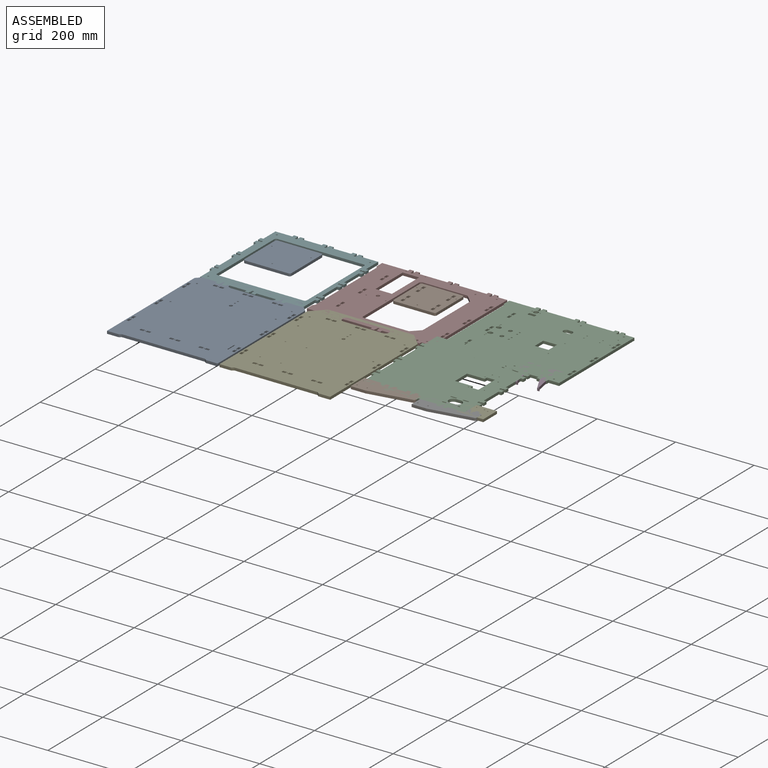
[diagram: assembled view]
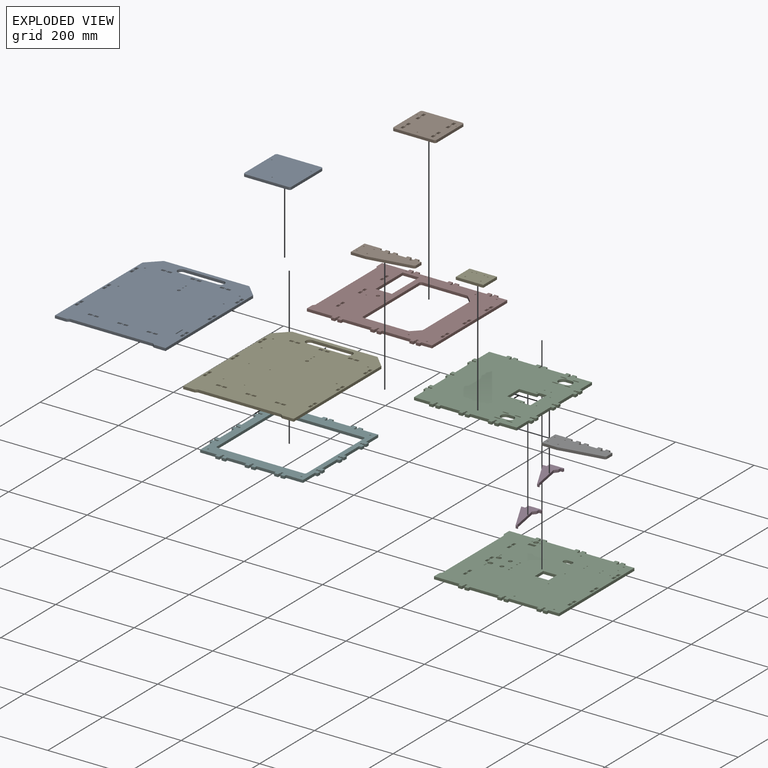
[diagram: exploded view]
GUIDED TOUR — MATED ASSEMBLY (Onshape document 58e44015b4d9da0f6f9fdbf2, AutoMate assembly 58e44015b4d9da0f6f9fdbf2_173f1cdadd715b1f26d6dbd6_f28251149753ce15b3aa4993_default)

This assembly has 13 components, labeled P0..P12 below (a component is one placed occurrence of a part; the same part can appear more than once), held together by 11 mates. A mate is a constraint between two components; its type names the relative motion it leaves free:
  FASTENED — locks the two components together rigidly (no relative motion).
Axis/direction vectors are unit vectors and 'through' points are millimeter coordinates, both in the assembly's world frame.

MATES
  1. FASTENED "Fastened 9": P1 <-> P6, direction (0.000, 0.000, 1.000) through (707.45, -486.00, 0.00) mm
  2. FASTENED "Fastened 6": P5 <-> P8, direction (0.000, 0.000, 1.000) through (-6.55, -230.00, 0.00) mm
  3. FASTENED "Fastened 10": P1 <-> P2, direction (0.000, 0.000, 1.000) through (567.45, -486.00, 0.00) mm
  4. FASTENED "Fastened 7": P8 <-> P4, direction (0.000, 0.000, 1.000) through (275.45, -285.00, 0.00) mm
  5. FASTENED "Fastened 3": P5 <-> P7, direction (0.000, 0.000, 1.000) through (262.00, 0.00, 0.00) mm
  6. FASTENED "Fastened 8": P2 <-> P4, direction (0.000, 0.000, 1.000) through (567.45, -275.00, 0.00) mm
  7. FASTENED "Fastened 4": P7 <-> P10, direction (0.000, 0.000, 1.000) through (591.00, 0.00, 0.00) mm
  8. FASTENED "Fastened 11": P3 <-> P11, direction (0.000, 0.000, 1.000) through (838.00, -224.45, 0.00) mm
  9. FASTENED "Fastened 12": P3 <-> P2, direction (0.000, 0.000, 1.000) through (838.00, -224.45, 0.00) mm
  10. FASTENED "Fastened 13": P12 <-> P2, direction (0.000, 0.000, 1.000) through (818.00, -511.55, 0.00) mm
  11. FASTENED "Fastened 5": P7 <-> P9, direction (0.000, 0.000, 1.000) through (396.00, -35.00, 0.00) mm

ASSEMBLY ORDER
  1. P7 — the base component [order verified]
  2. P4 [order verified]
  3. P5 [order verified]
  4. P8 [order verified]
  5. P1 [order verified]
  6. P2 [order verified]
  7. P6 [order verified]
  8. P3 [order verified]
  9. P11 [order verified]
  10. P10 [order verified]
  11. P0 [order verified]
  12. P9 [order verified]
  13. P12 [order verified]
Order-tag legend:
  [order verified] — this step's position reverses a verified removal order: the component was checked to insert without passing through the ones already placed.

Of the 13 components, 2 carry the full construction recipe — the FeatureScript program that regenerates the part's solid from scratch; the rest are supplied as boundary geometry only.
Because this assembly has more than 12 components, the tour below covers the 12 most significant ones individually (every recipe-attached component first, then the largest by part volume), in assembly order; the remaining 1 are summarized together in a grouped section at the end.
Each toured component is shown spotlighted twice — in the assembled view, then in the exploded view, where a leader line traces a displaced component back to its assembled socket (saturated green if recipe-attached, orange if geometry-only; every other component desaturated gray) — followed by its recipe or geometry summary and the mates that hold it.
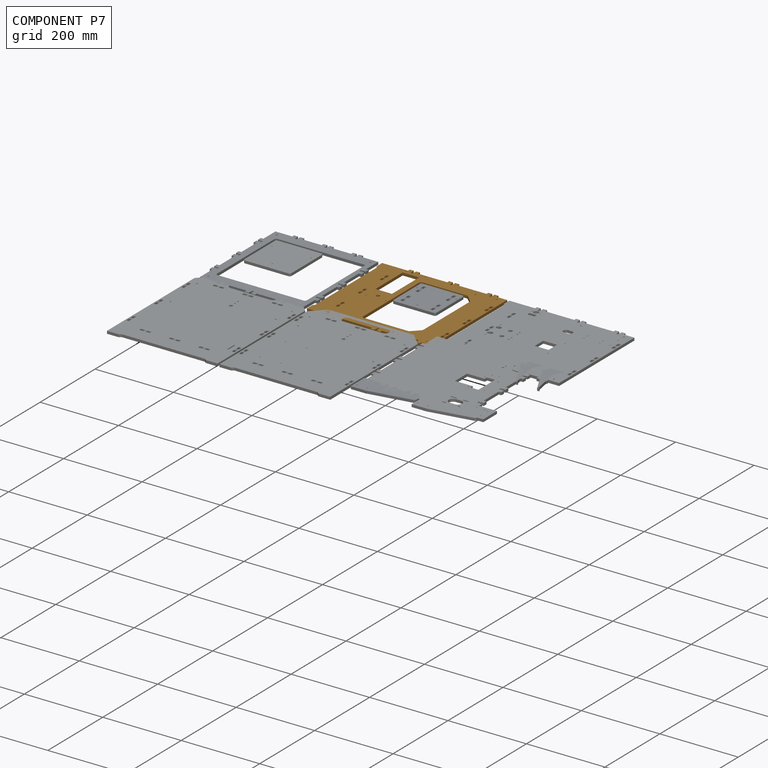
[diagram: component P7 — assembled]
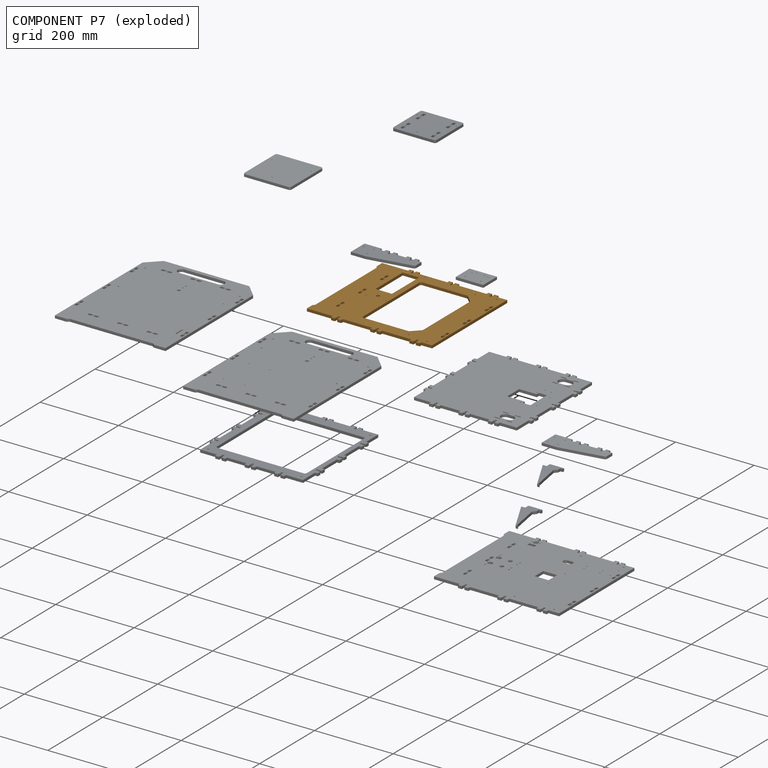
[diagram: component P7 — exploded]
COMPONENT P7 — geometry summary (no construction recipe available for this part):
  bounding box: 319.0 x 287.1 x 6.8 mm
  B-rep topology: 1 solid, 221 faces, 1314 edges
  volume: 355640 mm^3 (57% of its bounding box)
  symmetry: mirror-symmetric across its z mid-plane
Held by: FASTENED mate "Fastened 3" to P5; FASTENED mate "Fastened 4" to P10; FASTENED mate "Fastened 5" to P9.
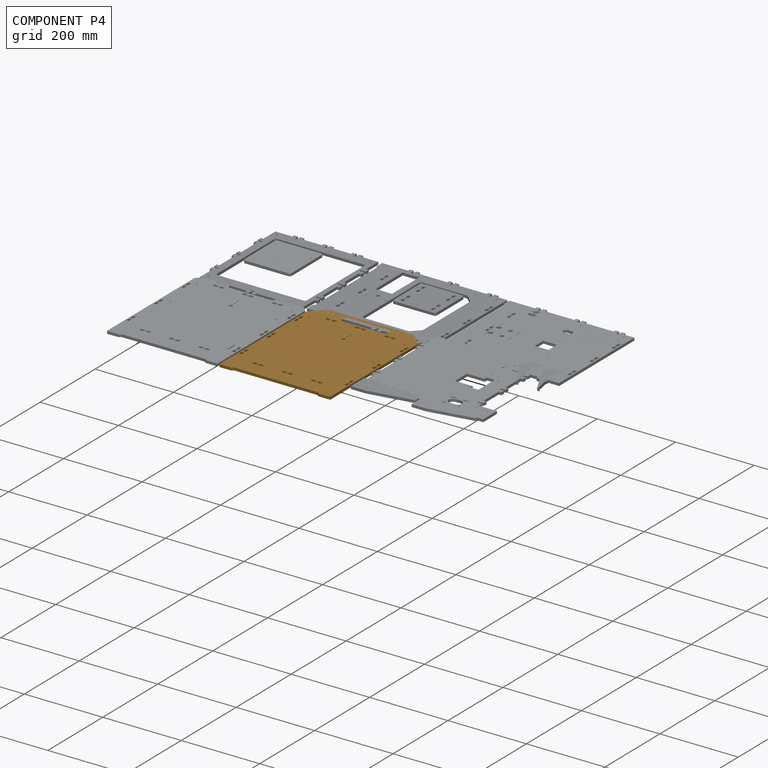
[diagram: component P4 — assembled]
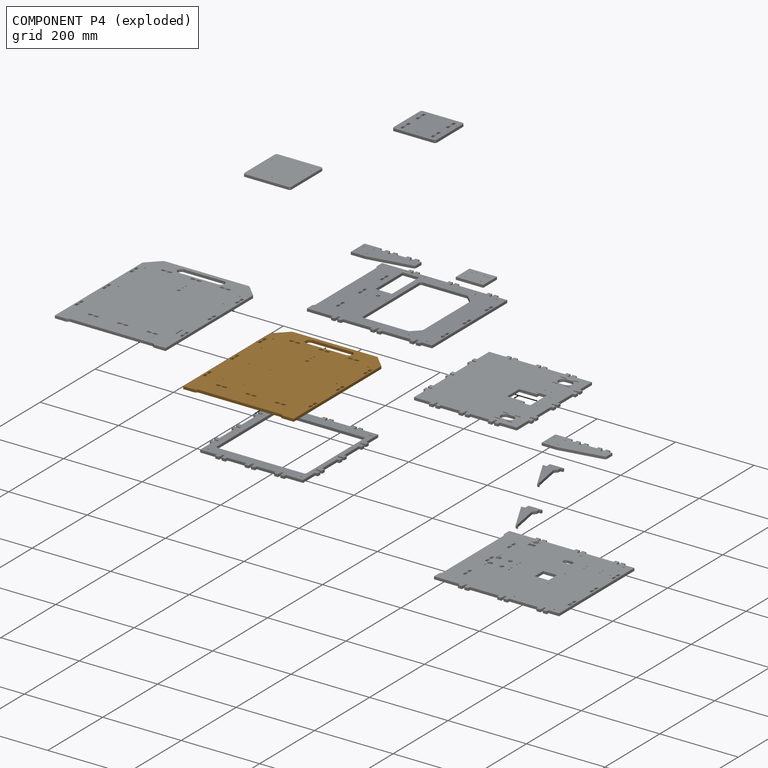
[diagram: component P4 — exploded]
COMPONENT P4 — geometry summary (no construction recipe available for this part):
  bounding box: 351.0 x 282.0 x 6.8 mm
  B-rep topology: 1 solid, 137 faces, 810 edges
  volume: 632048 mm^3 (94% of its bounding box)
  symmetry: 2-fold rotationally symmetric about the y axis; mirror-symmetric across its x mid-plane, z mid-plane
Held by: FASTENED mate "Fastened 7" to P8; FASTENED mate "Fastened 8" to P2.
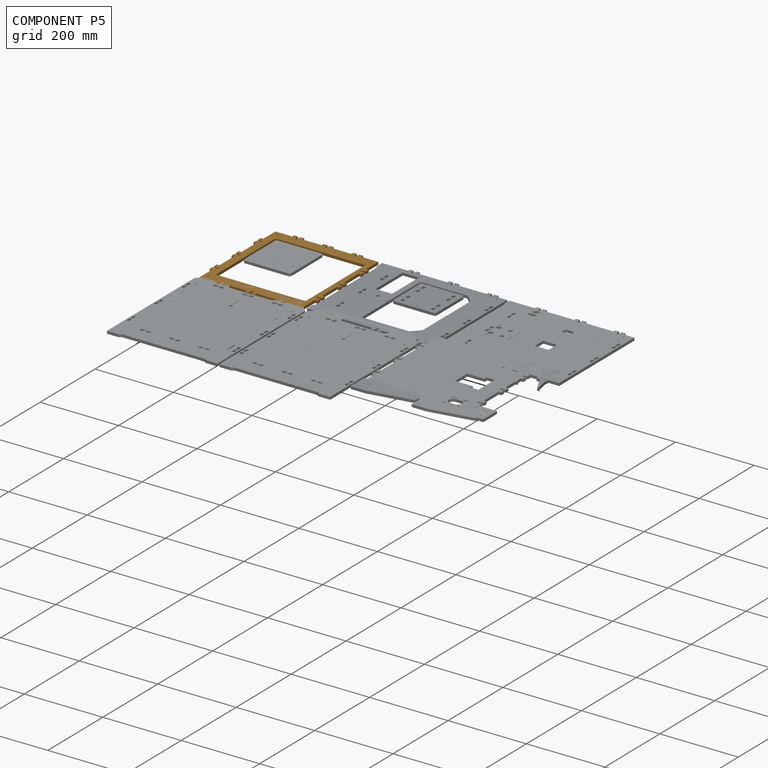
[diagram: component P5 — assembled]
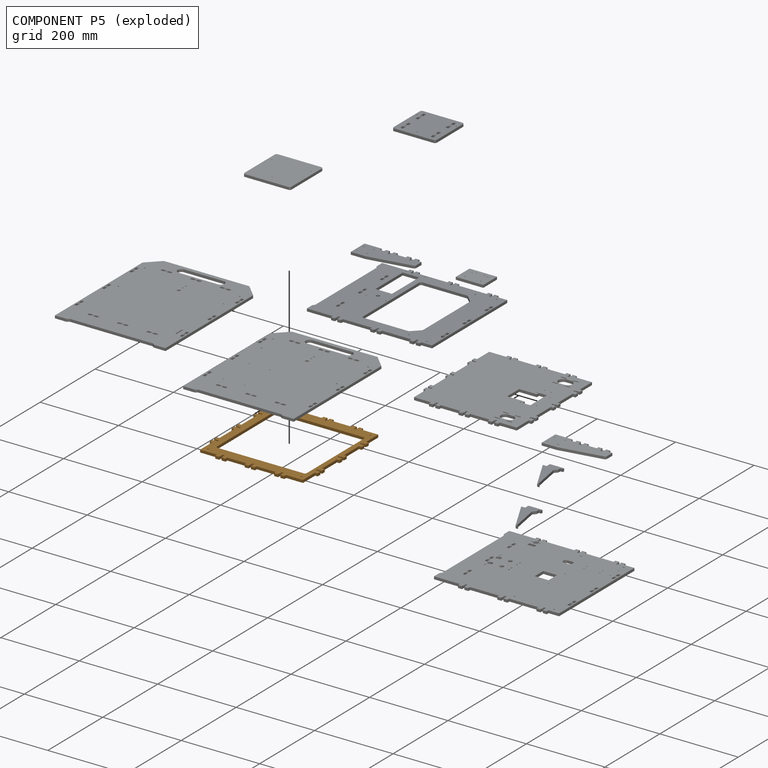
[diagram: component P5 — exploded]
COMPONENT P5 — geometry summary (no construction recipe available for this part):
  bounding box: 287.1 x 275.1 x 6.8 mm
  B-rep topology: 1 solid, 282 faces, 1684 edges
  volume: 157090 mm^3 (29% of its bounding box)
  symmetry: 2-fold rotationally symmetric about the y axis; mirror-symmetric across its x mid-plane, z mid-plane
Held by: FASTENED mate "Fastened 6" to P8; FASTENED mate "Fastened 3" to P7.
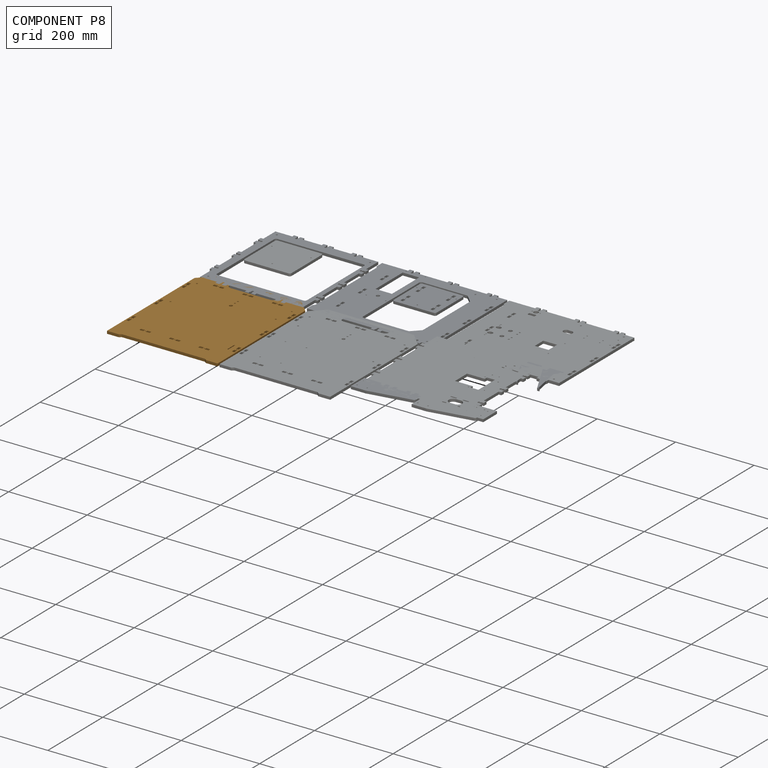
[diagram: component P8 — assembled]
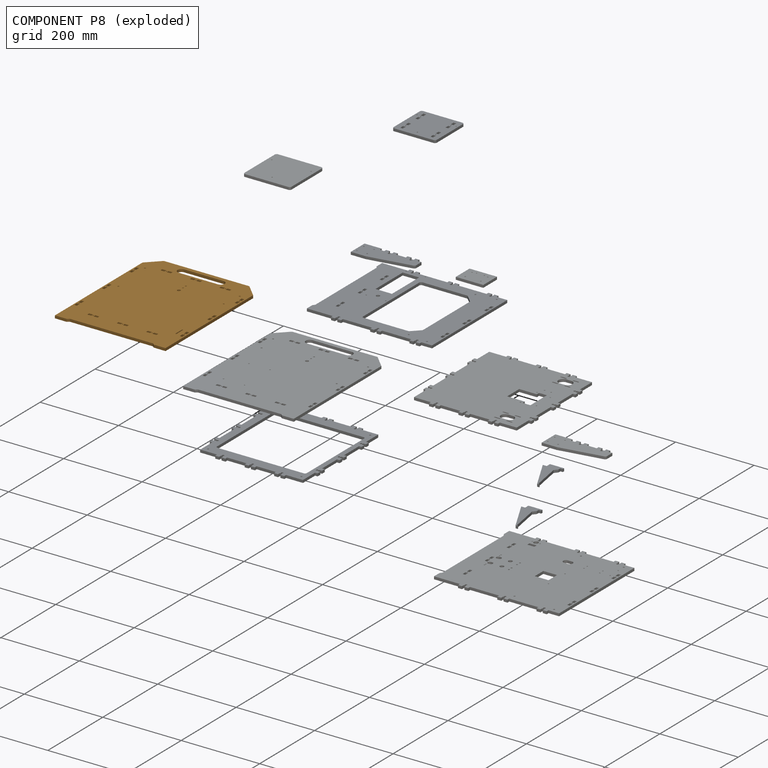
[diagram: component P8 — exploded]
COMPONENT P8 — geometry summary (no construction recipe available for this part):
  bounding box: 351.0 x 282.0 x 6.8 mm
  B-rep topology: 1 solid, 137 faces, 810 edges
  volume: 631798 mm^3 (94% of its bounding box)
  symmetry: 2-fold rotationally symmetric about the y axis; mirror-symmetric across its x mid-plane, z mid-plane
Held by: FASTENED mate "Fastened 6" to P5; FASTENED mate "Fastened 7" to P4.
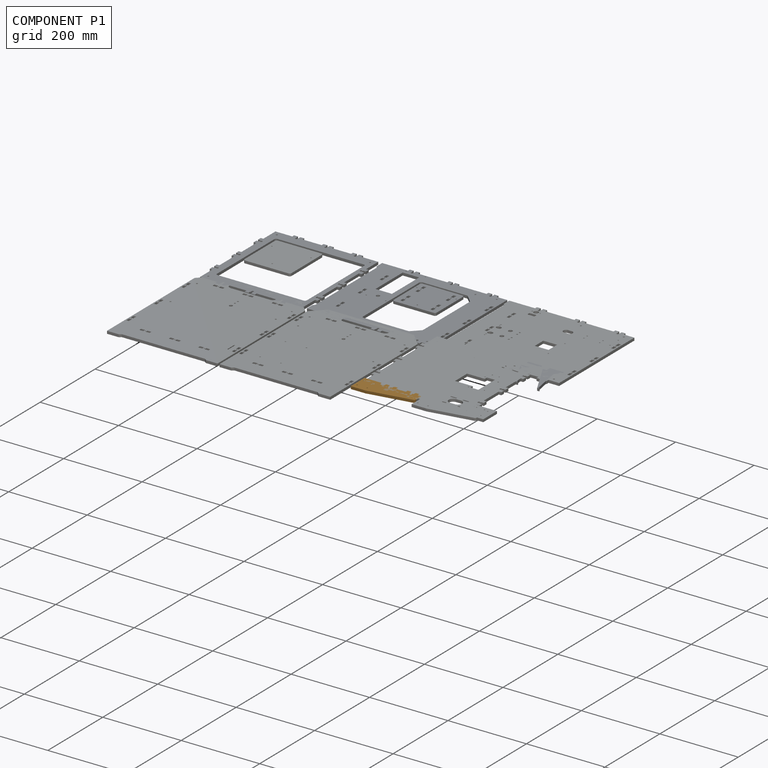
[diagram: component P1 — assembled]
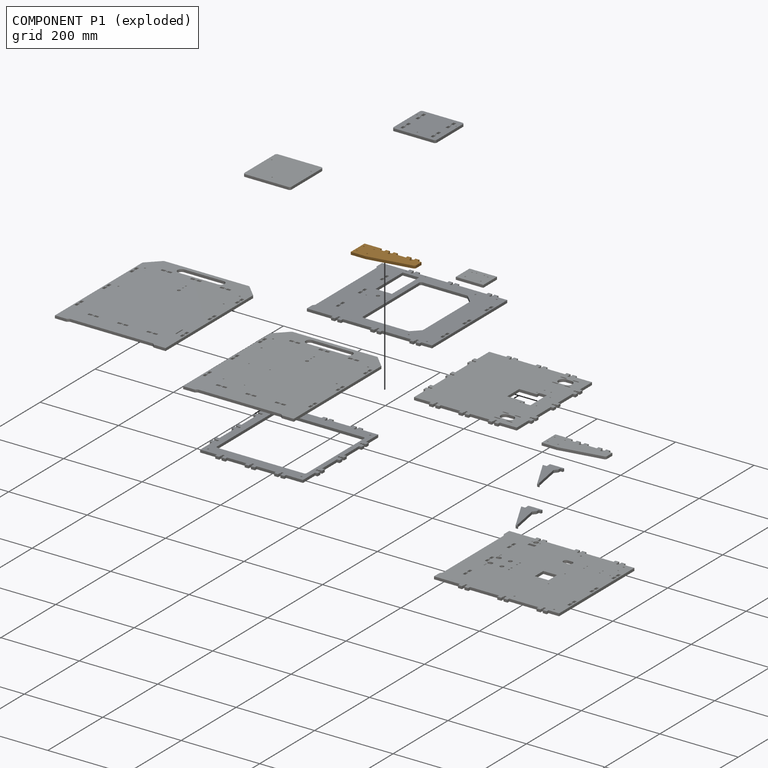
[diagram: component P1 — exploded]
COMPONENT P1 — geometry summary (no construction recipe available for this part):
  bounding box: 150.0 x 50.0 x 6.7 mm
  B-rep topology: 1 solid, 58 faces, 336 edges
  volume: 38903 mm^3 (78% of its bounding box)
  symmetry: mirror-symmetric across its z mid-plane
Held by: FASTENED mate "Fastened 9" to P6; FASTENED mate "Fastened 10" to P2.
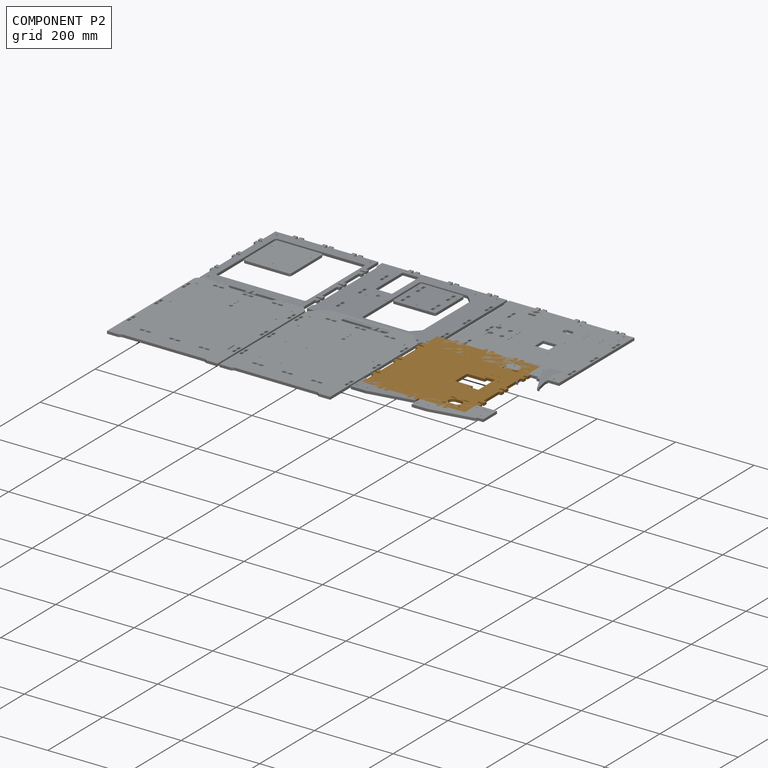
[diagram: component P2 — assembled]
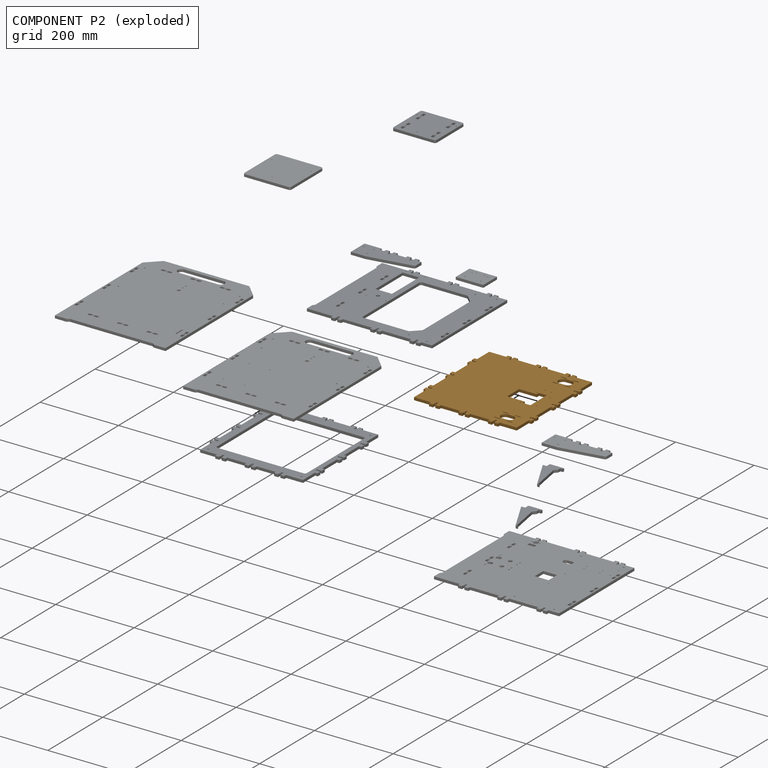
[diagram: component P2 — exploded]
COMPONENT P2 — geometry summary (no construction recipe available for this part):
  bounding box: 287.1 x 275.1 x 6.8 mm
  B-rep topology: 1 solid, 324 faces, 1932 edges
  volume: 462902 mm^3 (86% of its bounding box)
  symmetry: 2-fold rotationally symmetric about the y axis; mirror-symmetric across its x mid-plane, z mid-plane
Held by: FASTENED mate "Fastened 10" to P1; FASTENED mate "Fastened 8" to P4; FASTENED mate "Fastened 12" to P3; FASTENED mate "Fastened 13" to P12.
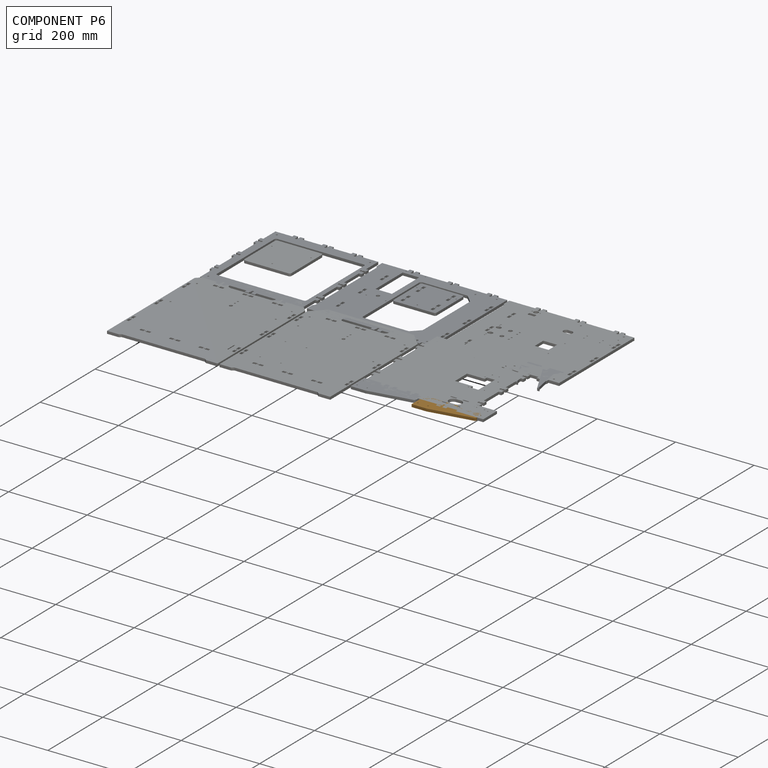
[diagram: component P6 — assembled]
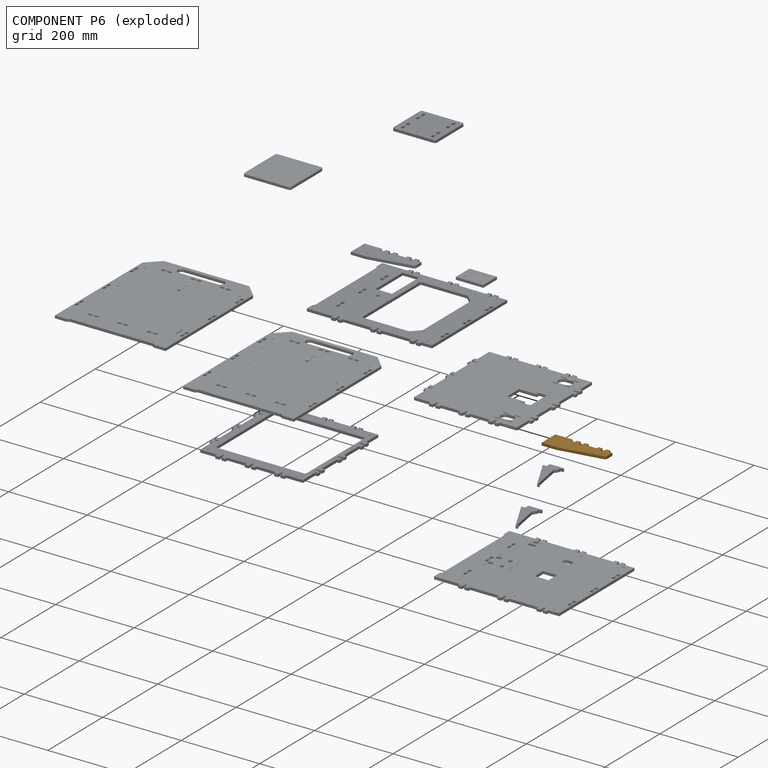
[diagram: component P6 — exploded]
COMPONENT P6 — geometry summary (no construction recipe available for this part):
  bounding box: 150.0 x 50.0 x 6.7 mm
  B-rep topology: 1 solid, 58 faces, 336 edges
  volume: 38903 mm^3 (78% of its bounding box)
  symmetry: mirror-symmetric across its z mid-plane
Held by: FASTENED mate "Fastened 9" to P1.
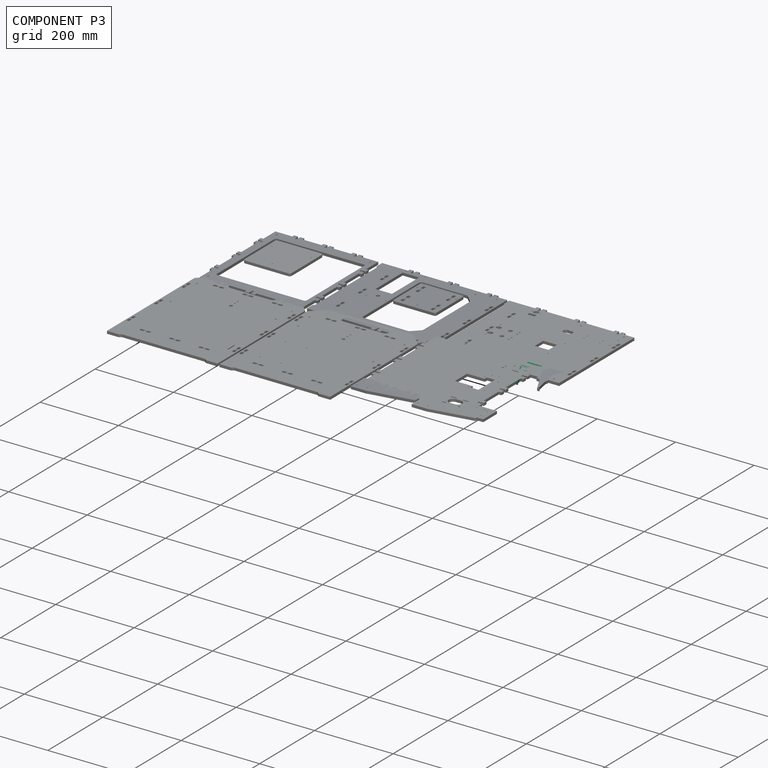
[diagram: component P3 — assembled]
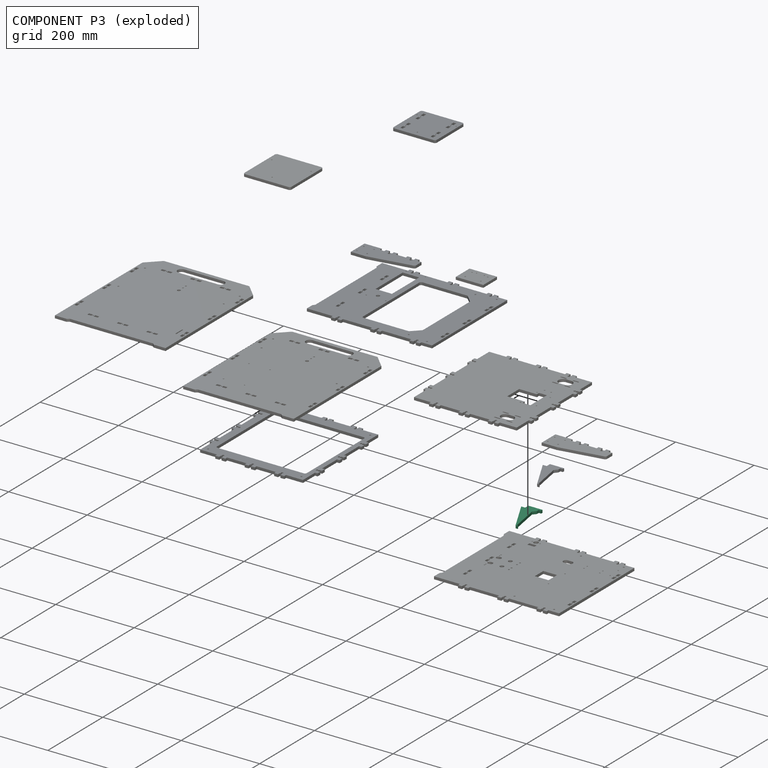
[diagram: component P3 — exploded]
COMPONENT P3 — recipe-attached (CADFS 00680010, mesh-verified: the recipe's output STEP matches this component's geometry to below the mesh-comparison resolution (tessellation chordal tolerance ~0.161 mm)).
Held by: FASTENED mate "Fastened 11" to P11; FASTENED mate "Fastened 12" to P2.
Construction recipe (FeatureScript — the CAD program that rebuilds this solid; sketch coordinates are in the units given by the * unit suffixes, e.g. mm):

FeatureScript 1511;
import(path : "onshape/std/geometry.fs", version : "1511.0");
import(path : "onshape/std/common.fs", version : "1511.0");
const mm = millimeter;
const VERTEX = EntityType.VERTEX;
const EDGE = EntityType.EDGE;
const FACE = EntityType.FACE;
const BODY = EntityType.BODY;
function v(x, y){return vector(x, y);}
function OD(order){return orderDisambiguation(order);}
function OSD(set){return originalSetDisambiguation(set);}
function TD(topology){return topologyDisambiguation(topology);}
function TDD(query){return trueDependencyDisambiguation(query);}
function sQuery(a, b, c) {return sketchEntityQuery(a, b, c);}

annotation { "Feature Type Name" : "Feature", "Feature Type Description" : "" }
export const myFeature = defineFeature(function(context is Context, id is Id, definition is map)
    precondition{}
    {
        {
            var Q0;
            Q0=qCreatedBy(makeId("Top.planeOp"),FACE);
            var sketch = newSketch(context, id + "F0", { "sketchPlane" : qUnion([Q0])});
            skLineSegment(sketch, "E0", {"start": v(-6.8, 0) * mm, "end": v(0, 0) * mm});
            skLineSegment(sketch, "E1", {"start": v(-11.8, 36) * mm, "end": v(-11.8, 0) * mm});
            skLineSegment(sketch, "E2", {"start": v(0, 0) * mm, "end": v(0, 32) * mm, "construction": true});
            skLineSegment(sketch, "E3", {"start": v(0, 30) * mm, "end": v(-6.8, 30) * mm});
            skLineSegment(sketch, "E4", {"start": v(-6.8, 30) * mm, "end": v(-6.8, 36) * mm});
            skLineSegment(sketch, "E5", {"start": v(-6.8, 30) * mm, "end": v(-6.8, 0) * mm, "construction": true});
            skLineSegment(sketch, "E6", {"start": v(-11.8, 36) * mm, "end": v(-6.8, 36) * mm});
            skLineSegment(sketch, "E7", {"start": v(-6.8, 0) * mm, "end": v(-11.8, 0) * mm});
            skLineSegment(sketch, "E8", {"start": v(0, 0) * mm, "end": v(0, -10) * mm});
            skLineSegment(sketch, "E9", {"start": v(0, -10) * mm, "end": v(83.2, 33.87) * mm});
            skLineSegment(sketch, "E10", {"start": v(83.2, 33.87) * mm, "end": v(83.2, 38.87) * mm});
            skLineSegment(sketch, "E11", {"start": v(83.2, 38.87) * mm, "end": v(81.2, 38.87) * mm});
            skLineSegment(sketch, "E12", {"start": v(81.2, 38.87) * mm, "end": v(81.2, 35.87) * mm});
            skLineSegment(sketch, "E13", {"start": v(81.2, 35.87) * mm, "end": v(8.32, 23.02) * mm});
            skLineSegment(sketch, "E14", {"start": v(8.32, 23.02) * mm, "end": v(0, 30) * mm});
            skSolve(sketch);
        }
        {
            var Q0;
            Q0=qSketchRegion(id+"F0",true);
            extrude(context, id + "F1", {"entities" : qUnion([Q0]), "depth" : 6.8 * mm});
        }
    });
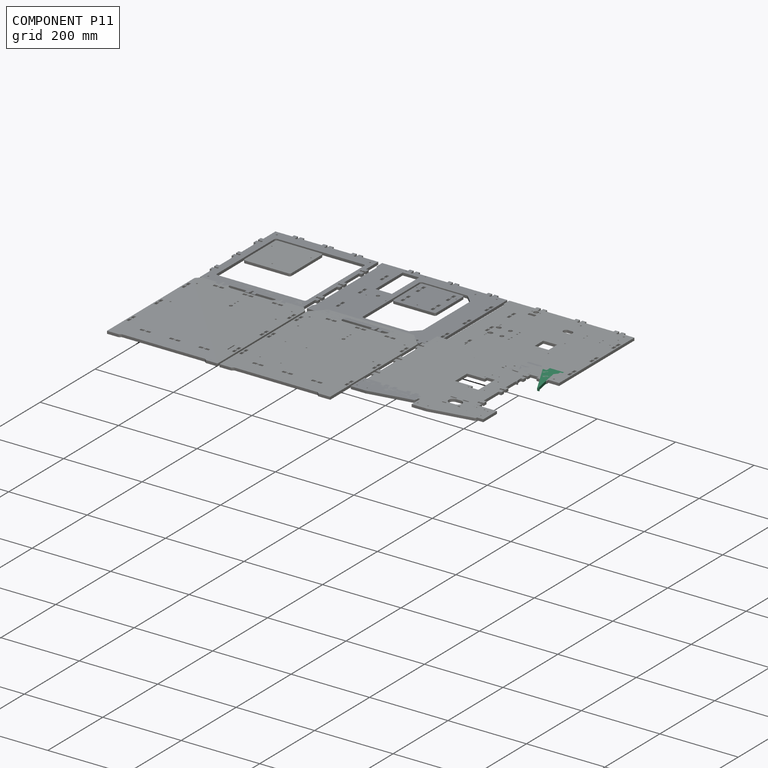
[diagram: component P11 — assembled]
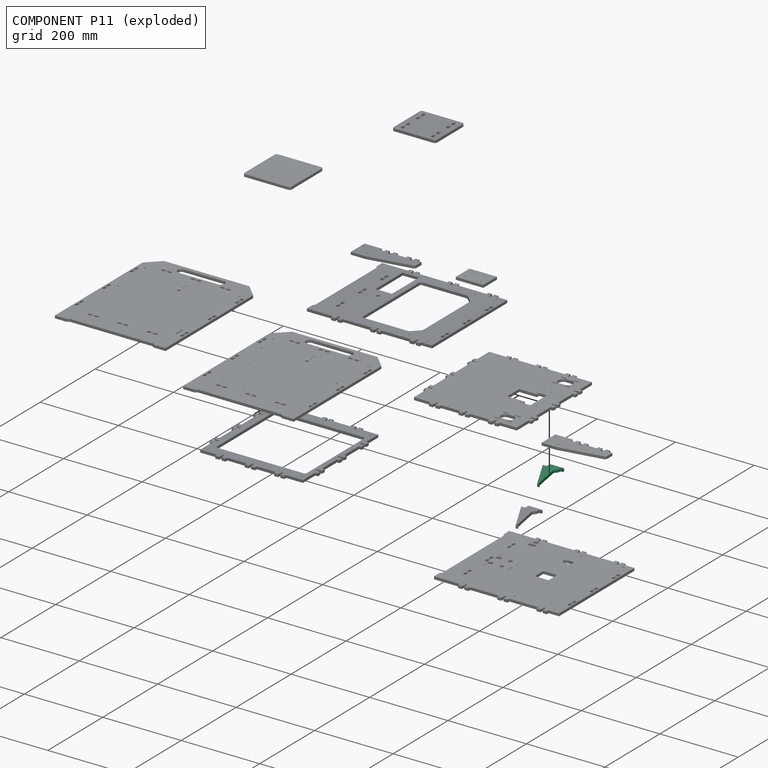
[diagram: component P11 — exploded]
COMPONENT P11 — same part as P3 (CADFS 00680010); its construction recipe is shown at P3.
Held by: FASTENED mate "Fastened 11" to P3.
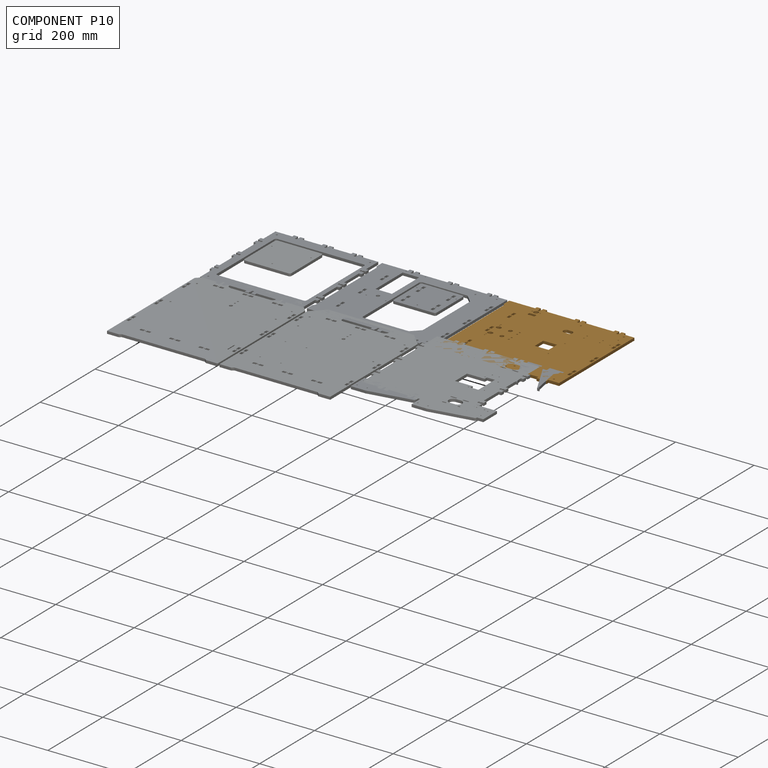
[diagram: component P10 — assembled]
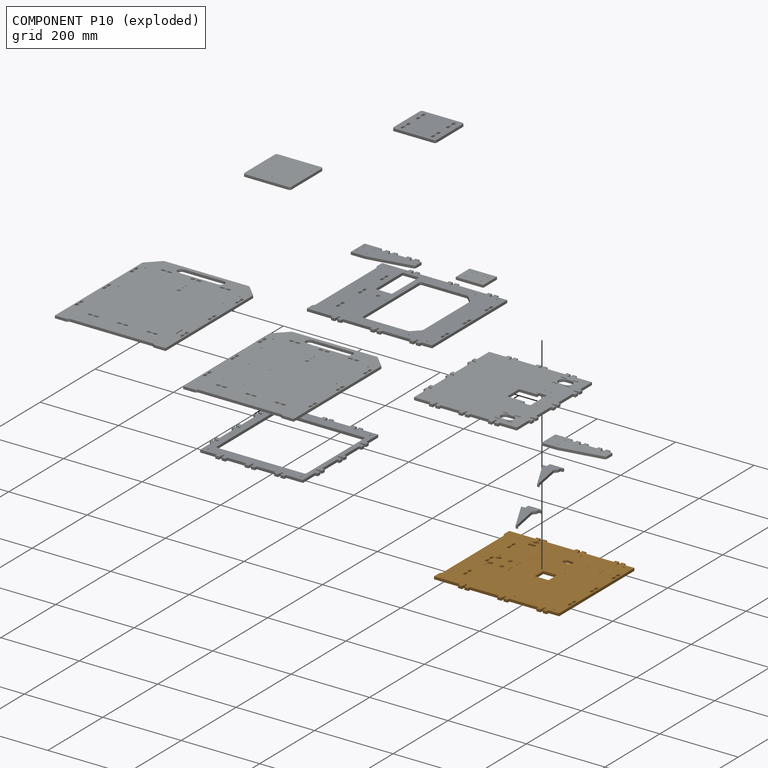
[diagram: component P10 — exploded]
COMPONENT P10 — geometry summary (no construction recipe available for this part):
  bounding box: 319.0 x 287.1 x 6.8 mm
  B-rep topology: 1 solid, 241 faces, 1450 edges
  volume: 571718 mm^3 (92% of its bounding box)
  symmetry: mirror-symmetric across its z mid-plane
Held by: FASTENED mate "Fastened 4" to P7.
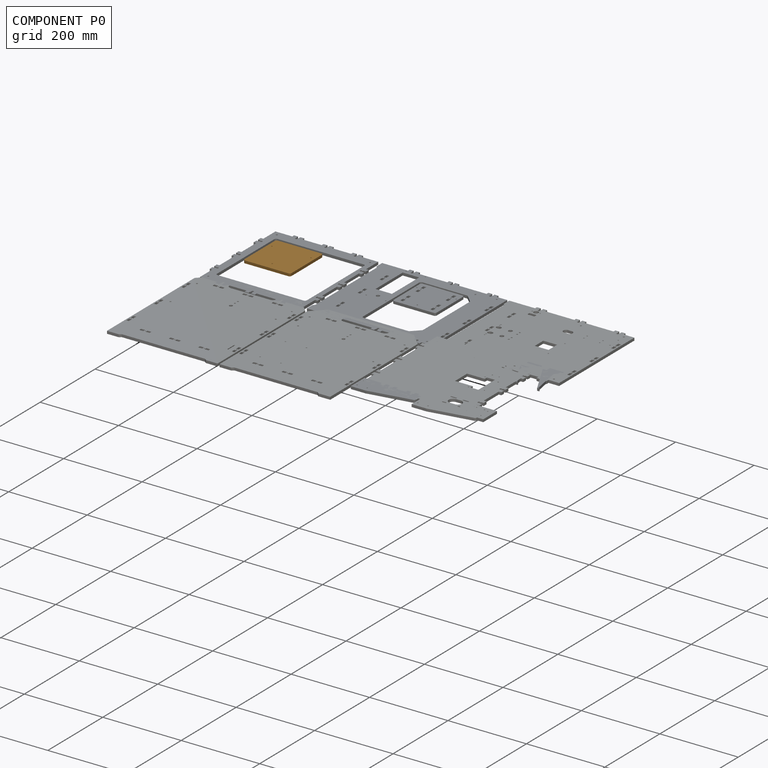
[diagram: component P0 — assembled]
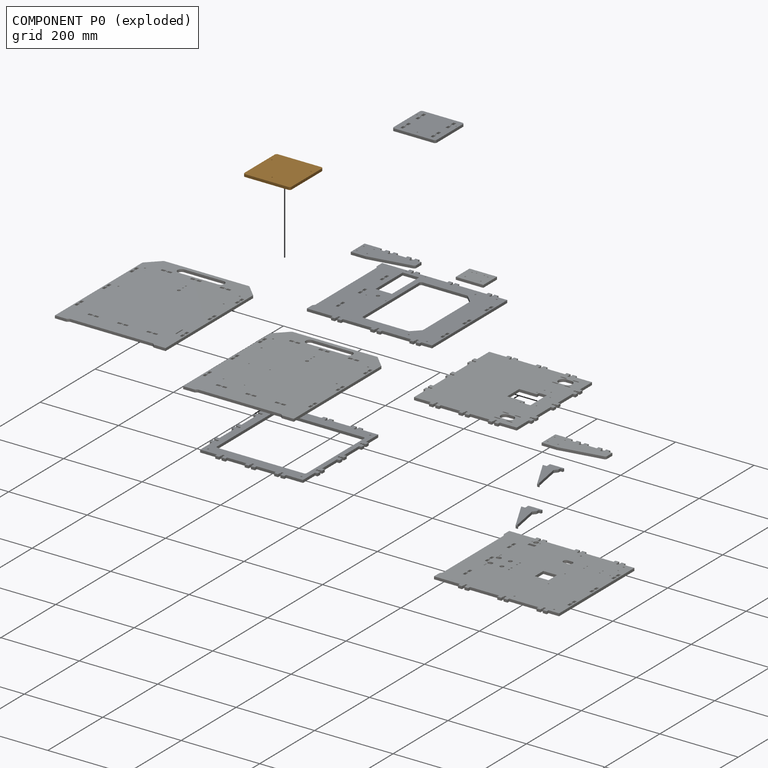
[diagram: component P0 — exploded]
COMPONENT P0 — geometry summary (no construction recipe available for this part):
  bounding box: 120.0 x 120.0 x 6.7 mm
  B-rep topology: 1 solid, 16 faces, 80 edges
  volume: 94730 mm^3 (99% of its bounding box)
  symmetry: mirror-symmetric across its x mid-plane
Held by: no mates (free).
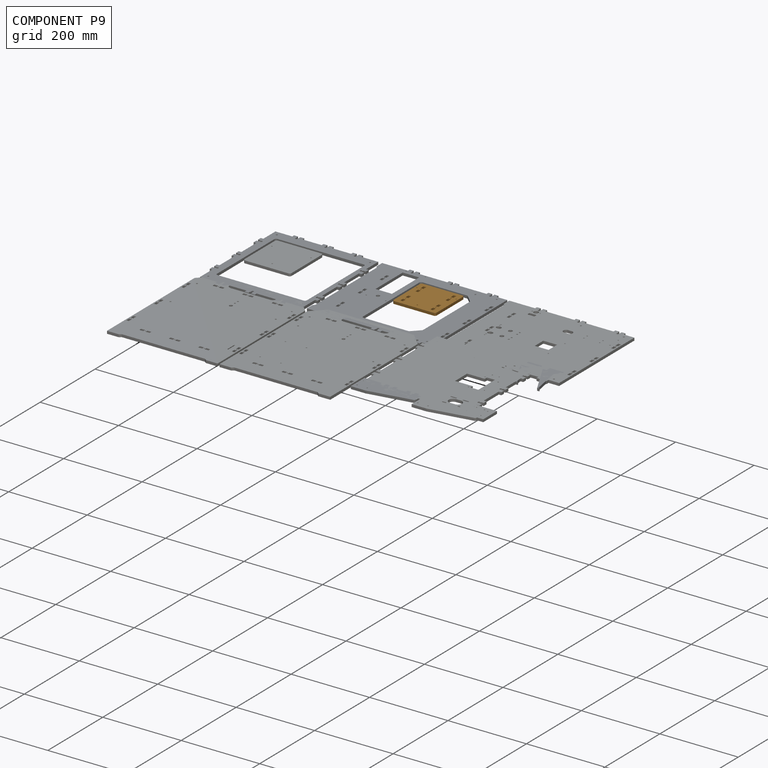
[diagram: component P9 — assembled]
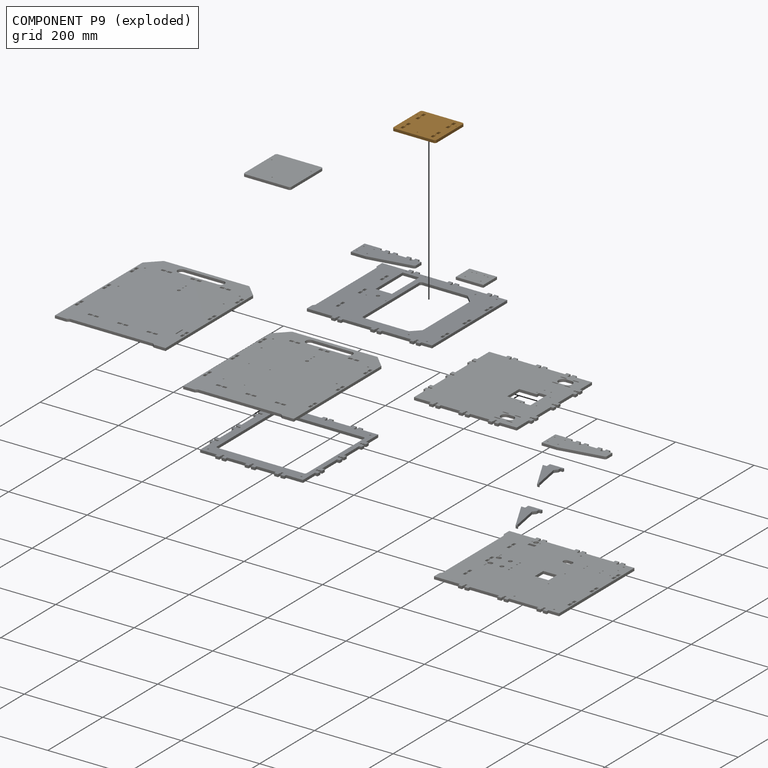
[diagram: component P9 — exploded]
COMPONENT P9 — geometry summary (no construction recipe available for this part):
  bounding box: 110.0 x 105.0 x 6.7 mm
  B-rep topology: 1 solid, 49 faces, 282 edges
  volume: 72682 mm^3 (95% of its bounding box)
  symmetry: 2-fold rotationally symmetric about the x axis; 2-fold rotationally symmetric about the y axis; 2-fold rotationally symmetric about the z axis; mirror-symmetric across its x mid-plane, y mid-plane, z mid-plane
Held by: FASTENED mate "Fastened 5" to P7.
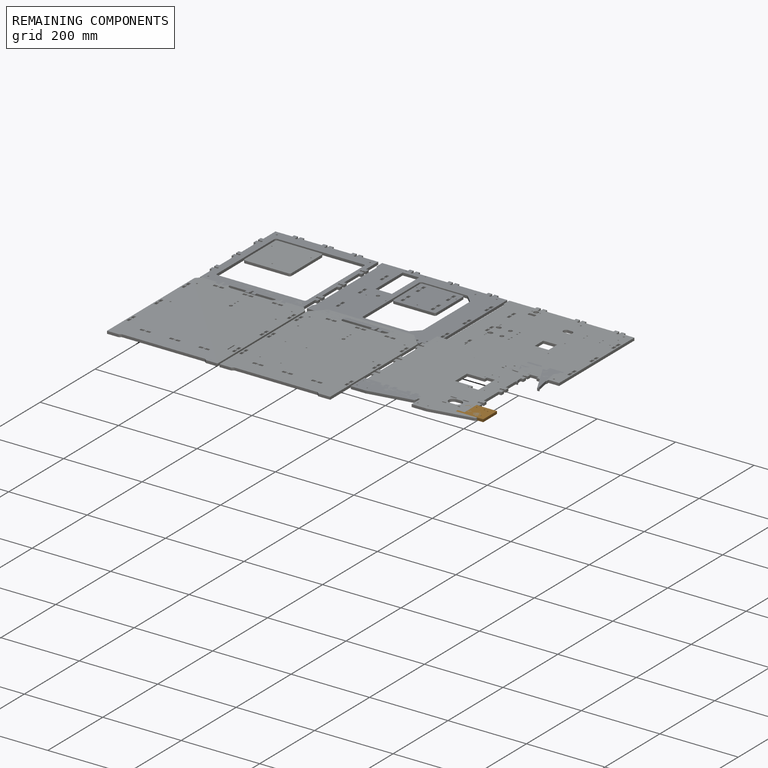
[diagram: remaining components — assembled]
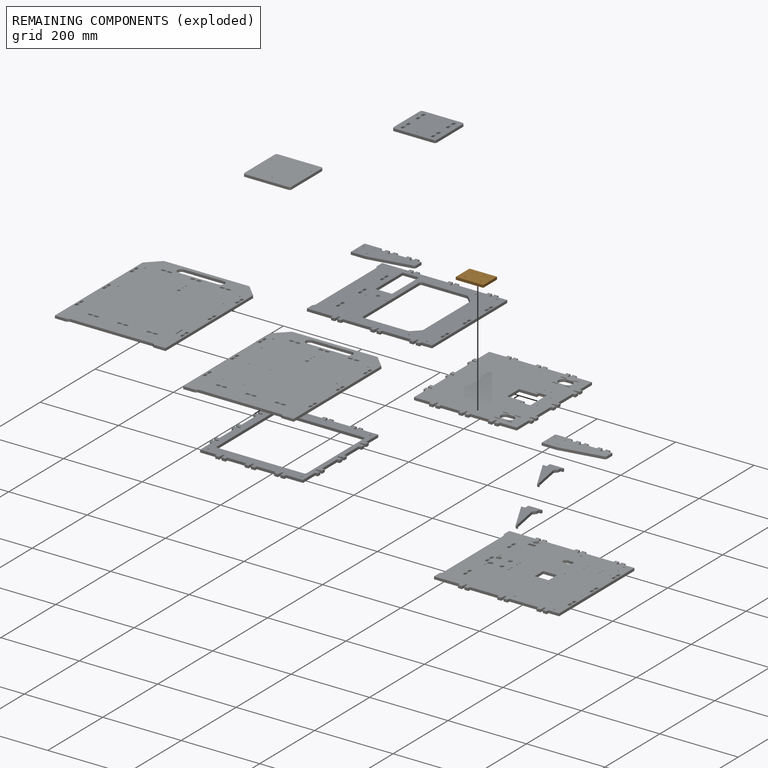
[diagram: remaining components — exploded]
REMAINING COMPONENTS (grouped) — the 1 components below fall outside the per-component tour by the significance rule stated above; both spotlight views highlight the whole group.
  P12: bounding box 70.0 x 50.0 x 6.7 mm, volume 22993 mm^3. Held by: FASTENED mate "Fastened 13" to P2.
PROVENANCE & LICENSES
Assembly (occurrences, transforms, mates, per-part STEP geometry): AutoMate dataset, Zenodo record 7776208, CC0.
Construction recipes: CADFS (HuggingFace VladPyatov/CADFS, CC-BY-4.0, layered over the ABC dataset), FeatureScript reconstruction programs keyed by ABC model id.
Join: ABC meta listings map ABC model id -> Onshape documentId; within a shared document, parts are matched by geometric signature (bounding-box dims + volume at 0.1% relative tolerance, exact B-rep face/solid counts).
Verification: 2 of this assembly's 13 components carry a recipe attachment, and every attachment is mesh-verified: the CADFS STEP and the AutoMate member STEP were compared as meshes in their shared local frame (symmetric sampled-point-to-mesh distance); worst across the 2 attachments: below the mesh-comparison resolution (tessellation chordal tolerance ~0.161 mm) on a 107 mm part.
Renders: orthographic iso camera (az 35 / el 25); the floor grid conveys scale (grid pitch printed in each image; no ruler). In the exploded view each component is displaced by its stored offset vector: the offsets alone carry the explosion direction (mate normal/axis signs are not orientation cues and do not encode it), and separation distances are assigned per mate-chain, not proportionally to assembly-order depth.
